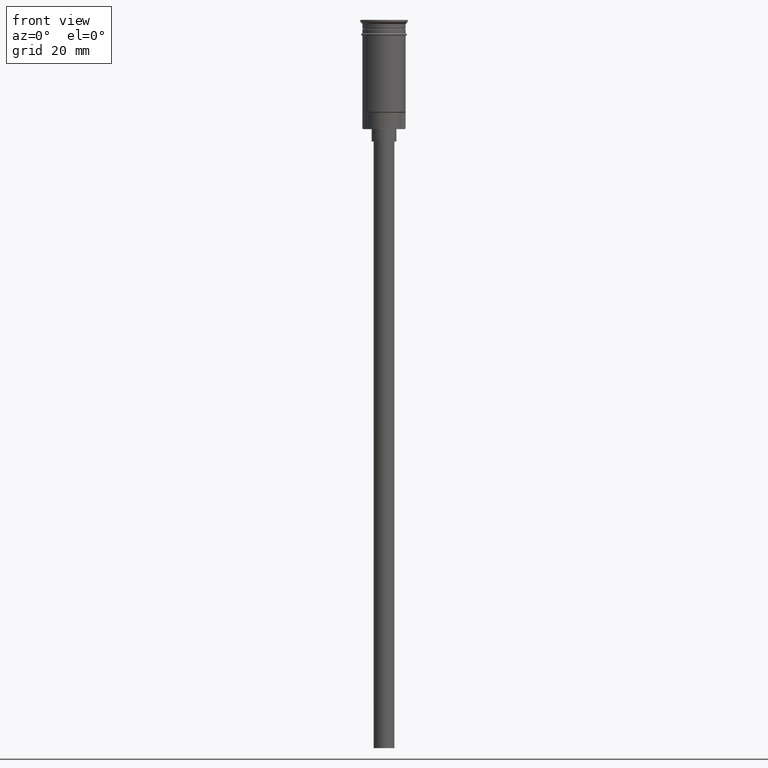
[diagram: clean part render]
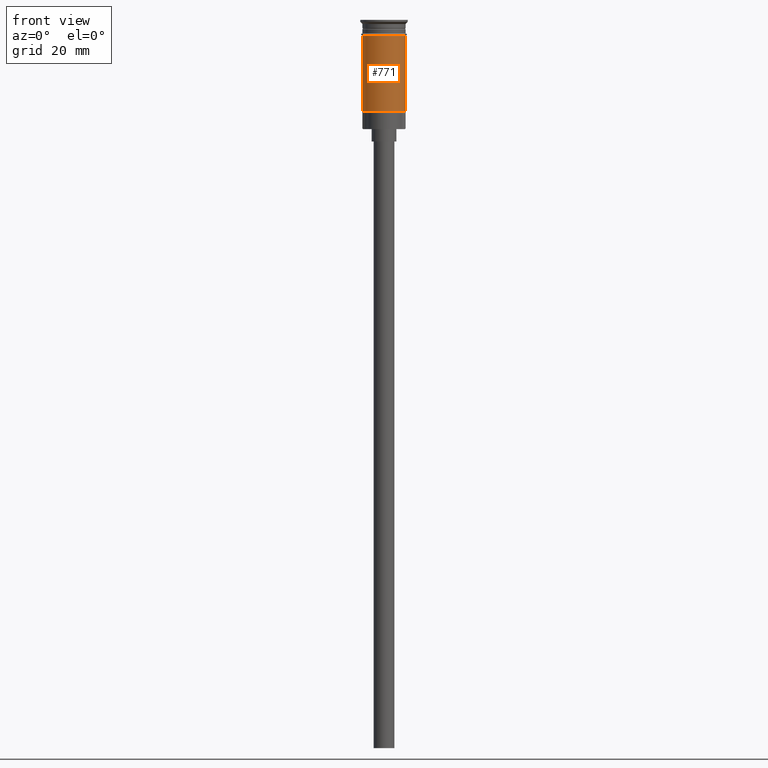
[diagram: same view with one face highlighted and labeled with its STEP entity id]
A machine part, front view. The second image highlights one B-rep face of the part: STEP entity #771.
In plain terms, the highlighted cylindrical surface (edge-blend (fillet) strip) has radius 5.25 mm, axis along (-0, -0, 1).
Its self-contained STEP definition (entity closure, byte-faithful):
#15 = EDGE_CURVE ( 'NONE', #876, #655, #663, .T. ) ;
#42 = VERTEX_POINT ( 'NONE', #837 ) ;
#52 = CYLINDRICAL_SURFACE ( 'NONE', #777, 5.249999999999996447 ) ;
#62 = DIRECTION ( 'NONE',  ( 1.000000000000000000, 0.000000000000000000, 0.000000000000000000 ) ) ;
#108 = EDGE_CURVE ( 'NONE', #763, #42, #526, .T. ) ;
#130 = EDGE_LOOP ( 'NONE', ( #1257, #1487, #1287, #198 ) ) ;
#147 = DIRECTION ( 'NONE',  ( -0.000000000000000000, -0.000000000000000000, 1.000000000000000000 ) ) ;
#160 = CARTESIAN_POINT ( 'NONE',  ( 5.249999999999996447, 0.000000000000000000, 0.000000000000000000 ) ) ;
#198 = ORIENTED_EDGE ( 'NONE', *, *, #506, .F. ) ;
#290 = EDGE_CURVE ( 'NONE', #763, #876, #747, .T. ) ;
#321 = DIRECTION ( 'NONE',  ( -0.000000000000000000, -0.000000000000000000, 1.000000000000000000 ) ) ;
#427 = DIRECTION ( 'NONE',  ( 1.000000000000000000, 0.000000000000000000, 0.000000000000000000 ) ) ;
#506 = EDGE_CURVE ( 'NONE', #42, #655, #1220, .T. ) ;
#526 = LINE ( 'NONE', #630, #1317 ) ;
#563 = AXIS2_PLACEMENT_3D ( 'NONE', #1581, #1046, #427 ) ;
#630 = CARTESIAN_POINT ( 'NONE',  ( -5.249999999999996447, 6.429395695523600208E-16, 0.000000000000000000 ) ) ;
#649 = DIRECTION ( 'NONE',  ( -0.000000000000000000, -0.000000000000000000, 1.000000000000000000 ) ) ;
#655 = VERTEX_POINT ( 'NONE', #1243 ) ;
#659 = CARTESIAN_POINT ( 'NONE',  ( 5.249999999999996447, 6.429395695523600208E-16, -22.29999999999998295 ) ) ;
#663 = LINE ( 'NONE', #160, #1169 ) ;
#667 = CARTESIAN_POINT ( 'NONE',  ( 0.000000000000000000, 0.000000000000000000, 0.000000000000000000 ) ) ;
#713 = DIRECTION ( 'NONE',  ( -0.000000000000000000, -0.000000000000000000, 1.000000000000000000 ) ) ;
#747 = CIRCLE ( 'NONE', #1479, 5.249999999999996447 ) ;
#763 = VERTEX_POINT ( 'NONE', #795 ) ;
#771 = ADVANCED_FACE ( 'NONE', ( #1427 ), #52, .T. ) ;
#777 = AXIS2_PLACEMENT_3D ( 'NONE', #667, #321, #62 ) ;
#795 = CARTESIAN_POINT ( 'NONE',  ( -5.249999999999994671, 0.000000000000000000, -22.29999999999998295 ) ) ;
#837 = CARTESIAN_POINT ( 'NONE',  ( -5.249999999999999112, 6.429395695523603167E-16, -3.799999999999998934 ) ) ;
#876 = VERTEX_POINT ( 'NONE', #659 ) ;
#1046 = DIRECTION ( 'NONE',  ( -0.000000000000000000, -0.000000000000000000, 1.000000000000000000 ) ) ;
#1073 = CARTESIAN_POINT ( 'NONE',  ( 0.000000000000000000, 0.000000000000000000, -22.29999999999998295 ) ) ;
#1169 = VECTOR ( 'NONE', #649, 1000.000000000000000 ) ;
#1220 = CIRCLE ( 'NONE', #563, 5.249999999999999112 ) ;
#1243 = CARTESIAN_POINT ( 'NONE',  ( 5.249999999999999112, 0.000000000000000000, -3.799999999999998934 ) ) ;
#1257 = ORIENTED_EDGE ( 'NONE', *, *, #108, .F. ) ;
#1287 = ORIENTED_EDGE ( 'NONE', *, *, #15, .T. ) ;
#1317 = VECTOR ( 'NONE', #147, 1000.000000000000000 ) ;
#1347 = DIRECTION ( 'NONE',  ( -1.000000000000000000, 0.000000000000000000, 0.000000000000000000 ) ) ;
#1427 = FACE_OUTER_BOUND ( 'NONE', #130, .T. ) ;
#1479 = AXIS2_PLACEMENT_3D ( 'NONE', #1073, #713, #1347 ) ;
#1487 = ORIENTED_EDGE ( 'NONE', *, *, #290, .T. ) ;
#1581 = CARTESIAN_POINT ( 'NONE',  ( 0.000000000000000000, 0.000000000000000000, -3.799999999999998934 ) ) ;